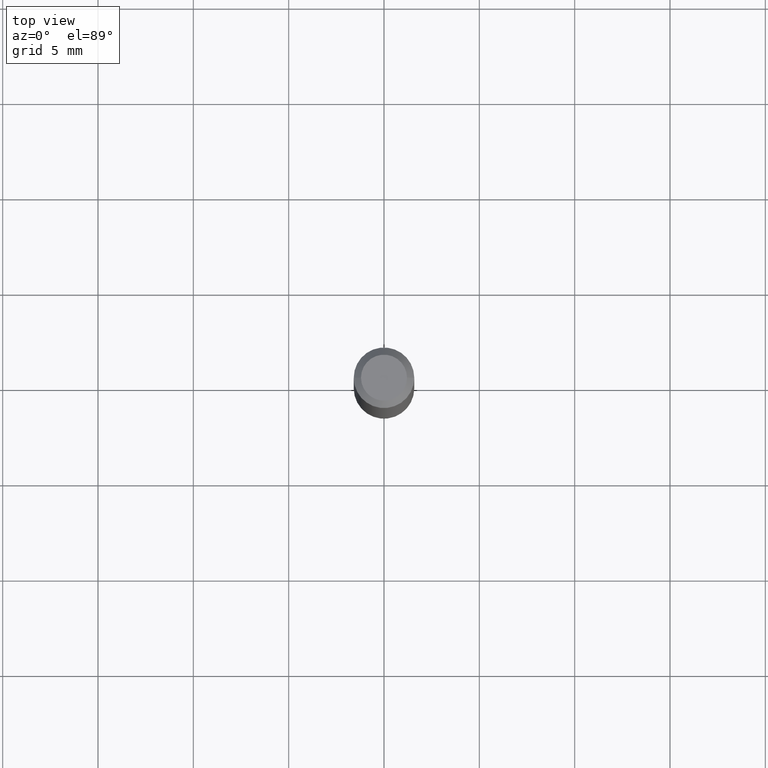
[diagram: clean part render]
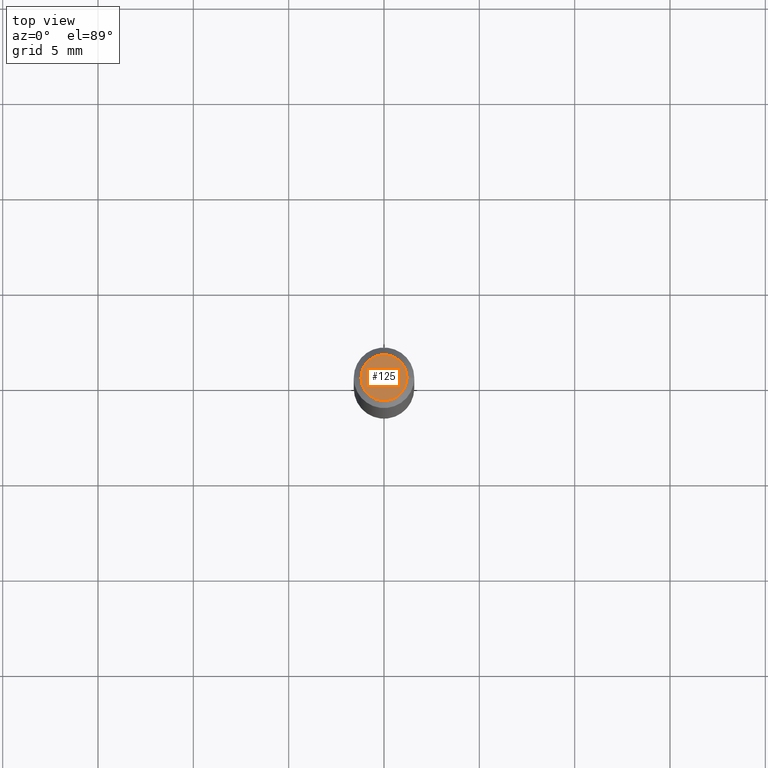
[diagram: same view with one face highlighted and labeled with its STEP entity id]
A machine part, top view. The second image highlights one B-rep face of the part: STEP entity #125.
In plain terms, the highlighted planar face has unit normal (0, -0, -1).
Its self-contained STEP definition (entity closure, byte-faithful):
#17 = DIRECTION ( 'NONE',  ( -2.445468806185136597E-29, 3.491481338843145583E-15, 1.000000000000000000 ) ) ;
#23 = EDGE_LOOP ( 'NONE', ( #167, #27 ) ) ;
#27 = ORIENTED_EDGE ( 'NONE', *, *, #328, .T. ) ;
#42 = DIRECTION ( 'NONE',  ( -1.000000000000000000, 6.982962677686265922E-15, -4.876176775795935793E-29 ) ) ;
#87 = DIRECTION ( 'NONE',  ( 1.000000000000000000, -6.982962677686267499E-15, 4.884662768193073563E-29 ) ) ;
#92 = AXIS2_PLACEMENT_3D ( 'NONE', #354, #211, #42 ) ;
#99 = AXIS2_PLACEMENT_3D ( 'NONE', #287, #396, #362 ) ;
#125 = ADVANCED_FACE ( 'NONE', ( #200 ), #395, .F. ) ;
#167 = ORIENTED_EDGE ( 'NONE', *, *, #412, .T. ) ;
#200 = FACE_OUTER_BOUND ( 'NONE', #23, .T. ) ;
#211 = DIRECTION ( 'NONE',  ( 2.438088387897960049E-29, -3.491481338843145188E-15, -1.000000000000000000 ) ) ;
#215 = CARTESIAN_POINT ( 'NONE',  ( 2.954749863753850810E-45, -4.218599715585527355E-31, -1.208254980100596185E-16 ) ) ;
#287 = CARTESIAN_POINT ( 'NONE',  ( 2.954749863753850810E-45, -4.218599715585527355E-31, -1.208254980100596185E-16 ) ) ;
#295 = CARTESIAN_POINT ( 'NONE',  ( 0.04749999999999998668, -4.035134999187580102E-16, -1.208254980100570300E-16 ) ) ;
#328 = EDGE_CURVE ( 'NONE', #348, #459, #389, .T. ) ;
#336 = AXIS2_PLACEMENT_3D ( 'NONE', #215, #17, #87 ) ;
#343 = CIRCLE ( 'NONE', #99, 0.04749999999999998668 ) ;
#348 = VERTEX_POINT ( 'NONE', #295 ) ;
#354 = CARTESIAN_POINT ( 'NONE',  ( 3.316907271900975110E-16, 0.04749999999999998668, -2.262581126000791810E-16 ) ) ;
#362 = DIRECTION ( 'NONE',  ( 1.000000000000000000, -6.982962677686267499E-15, 4.884662768193073563E-29 ) ) ;
#389 = CIRCLE ( 'NONE', #336, 0.04749999999999998668 ) ;
#395 = PLANE ( 'NONE',  #92 ) ;
#396 = DIRECTION ( 'NONE',  ( -2.445468806185136597E-29, 3.491481338843145583E-15, 1.000000000000000000 ) ) ;
#412 = EDGE_CURVE ( 'NONE', #459, #348, #343, .T. ) ;
#435 = CARTESIAN_POINT ( 'NONE',  ( -0.04749999999999998668, 3.578768372314208041E-16, -1.208254980100620344E-16 ) ) ;
#459 = VERTEX_POINT ( 'NONE', #435 ) ;